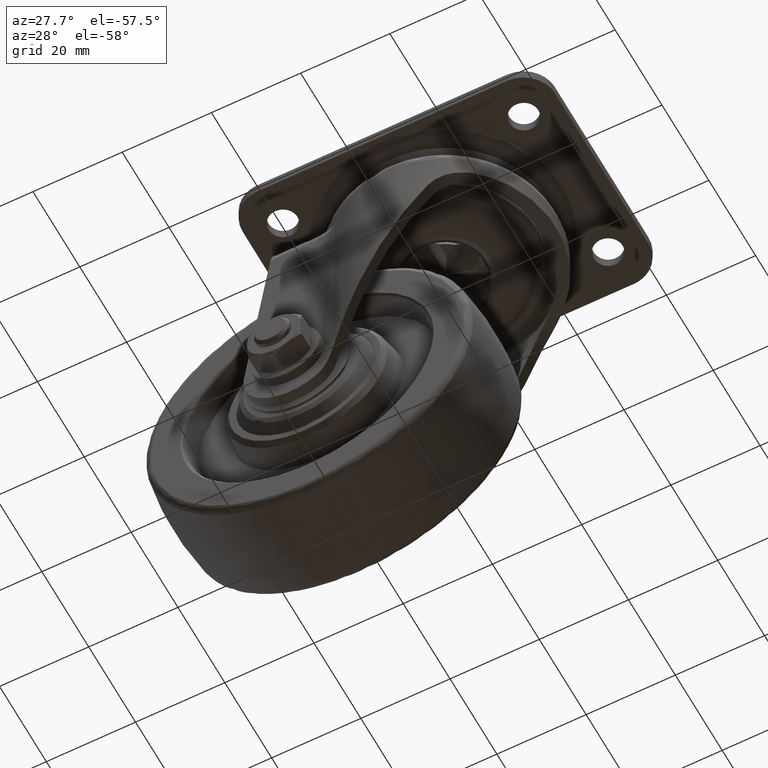
[diagram: clean part render]
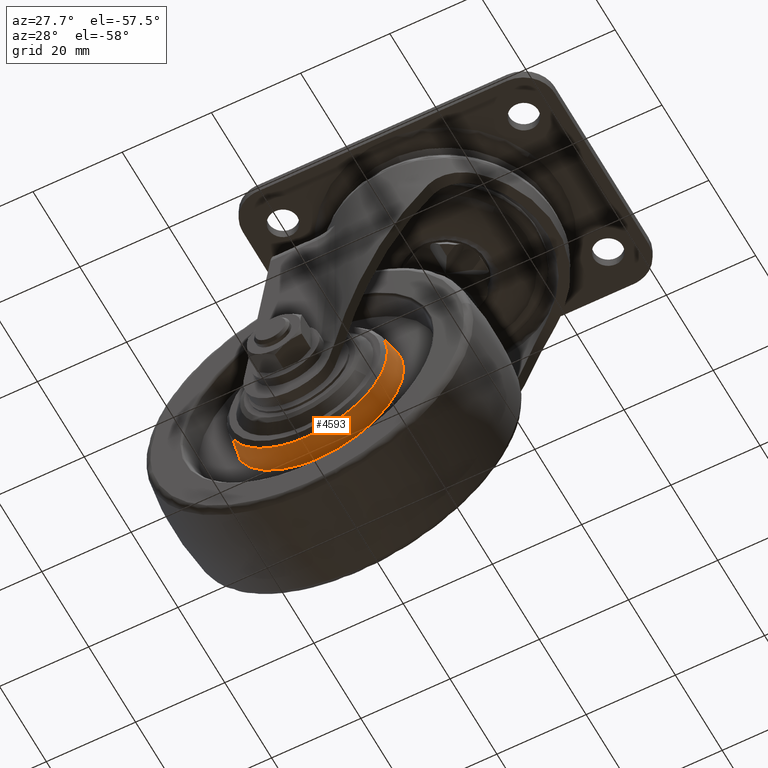
[diagram: same view with one face highlighted and labeled with its STEP entity id]
A machine part, auxiliary view. The second image highlights one B-rep face of the part: STEP entity #4593.
In plain terms, the highlighted face is a freeform B-spline surface patch.
Its self-contained STEP definition (entity closure, byte-faithful):
#4253=CARTESIAN_POINT('',(-25.0,-6.500000000000000,-74.499954999999318));
#4254=VERTEX_POINT('',#4253);
#4255=CARTESIAN_POINT('',(-7.446288882292429,-6.499999999996124,-48.228969785044022));
#4256=VERTEX_POINT('',#4255);
#4257=CARTESIAN_POINT('',(-25.0,-6.500000000000000,-74.499954999999318));
#4258=CARTESIAN_POINT('',(-5.999999999999766,-6.499999999998706,-74.499954999999218));
#4259=CARTESIAN_POINT('',(-5.999999999999414,-6.499999999996768,-55.499954999999069));
#4260=CARTESIAN_POINT('',(-5.999999999999343,-6.499999999996384,-51.720620019775232));
#4261=CARTESIAN_POINT('',(-7.446288882292429,-6.499999999996124,-48.228969785044008));
#4269=(BOUNDED_CURVE()B_SPLINE_CURVE(2,(#4257,#4258,#4259,#4260,#4261),.UNSPECIFIED.,.F.,.U.)B_SPLINE_CURVE_WITH_KNOTS((3,2,3),(0.0,0.250000000000000,0.314972883118700),.UNSPECIFIED.)CURVE()GEOMETRIC_REPRESENTATION_ITEM()RATIONAL_B_SPLINE_CURVE((1.0,0.707106781186548,1.0,0.923879532511095,0.887325194918970))REPRESENTATION_ITEM(''));
#4270=EDGE_CURVE('',#4254,#4256,#4269,.T.);
#4272=CARTESIAN_POINT('',(-42.553711117707572,-6.499999999996124,-62.770940214954621));
#4273=VERTEX_POINT('',#4272);
#4274=CARTESIAN_POINT('',(-42.553711117707572,-6.499999999996124,-62.770940214954635));
#4275=CARTESIAN_POINT('',(-37.695394120452711,-6.499999999998063,-74.499954999999474));
#4276=CARTESIAN_POINT('',(-25.0,-6.500000000000000,-74.499954999999318));
#4284=(BOUNDED_CURVE()B_SPLINE_CURVE(2,(#4274,#4275,#4276),.UNSPECIFIED.,.F.,.U.)B_SPLINE_CURVE_WITH_KNOTS((3,3),(0.814972883118700,1.0),.UNSPECIFIED.)CURVE()GEOMETRIC_REPRESENTATION_ITEM()RATIONAL_B_SPLINE_CURVE((0.887325194918970,0.783227248675452,1.0))REPRESENTATION_ITEM(''));
#4285=EDGE_CURVE('',#4273,#4254,#4284,.T.);
#4462=CARTESIAN_POINT('',(-41.635317825492081,-11.470311920985420,-62.390527564680092));
#4463=VERTEX_POINT('',#4462);
#4494=CARTESIAN_POINT('',(-8.364682174507927,-11.470311920985420,-48.609382435318537));
#4495=VERTEX_POINT('',#4494);
#4509=CARTESIAN_POINT('',(-8.364682174507927,-11.470311920985420,-48.609382435318537));
#4510=CARTESIAN_POINT('',(-7.446288882292429,-6.499999999996124,-48.228969785044022));
#4511=QUASI_UNIFORM_CURVE('',1,(#4509,#4510),.UNSPECIFIED.,.F.,.U.);
#4512=EDGE_CURVE('',#4495,#4256,#4511,.T.);
#4516=CARTESIAN_POINT('',(-41.635317825492081,-11.470311920985420,-62.390527564680092));
#4517=CARTESIAN_POINT('',(-42.553711117707572,-6.499999999996124,-62.770940214954621));
#4518=QUASI_UNIFORM_CURVE('',1,(#4516,#4517),.UNSPECIFIED.,.F.,.U.);
#4519=EDGE_CURVE('',#4463,#4273,#4518,.T.);
#4524=CARTESIAN_POINT('',(-8.387642333452234,-11.594568166305191,-48.618891151522568));
#4525=CARTESIAN_POINT('',(-1.506578484975488,-11.594568166305189,-65.231248818070327));
#4526=CARTESIAN_POINT('',(-18.118936151523251,-11.594568166305191,-72.112312666547083));
#4527=CARTESIAN_POINT('',(-34.731293818071023,-11.594568166305189,-78.993376515023840));
#4528=CARTESIAN_POINT('',(-41.612357666547773,-11.594568166305191,-62.381018848476067));
#4529=CARTESIAN_POINT('',(-7.422755046006405,-6.372635795842369,-48.219221750901120));
#4530=CARTESIAN_POINT('',(-0.142021796908210,-6.372635795842369,-65.796466704894712));
#4531=CARTESIAN_POINT('',(-17.719266750901799,-6.372635795842369,-73.077199953992917));
#4532=CARTESIAN_POINT('',(-35.296511704895401,-6.372635795842369,-80.357933203091108));
#4533=CARTESIAN_POINT('',(-42.577244953993599,-6.372635795842369,-62.780688249097523));
#4541=(BOUNDED_SURFACE()B_SPLINE_SURFACE(2,1,((#4524,#4529),(#4525,#4530),(#4526,#4531),(#4527,#4532),(#4528,#4533)),.UNSPECIFIED.,.F.,.F.,.U.)B_SPLINE_SURFACE_WITH_KNOTS((3,2,3),(2,2),(0.0,31.522435524933559,63.044871049867119),(0.0,5.325347011130369),.UNSPECIFIED.)GEOMETRIC_REPRESENTATION_ITEM()RATIONAL_B_SPLINE_SURFACE(((1.0,1.0),(0.707106781186548,0.707106781186548),(1.0,1.0),(0.707106781186548,0.707106781186548),(1.0,1.0)))REPRESENTATION_ITEM('')SURFACE());
#4542=CARTESIAN_POINT('',(-25.0,-11.470310406056999,-73.505892918787808));
#4543=VERTEX_POINT('',#4542);
#4544=CARTESIAN_POINT('',(-41.635317825492095,-11.470311920985422,-62.390527564680092));
#4545=CARTESIAN_POINT('',(-37.031184064324840,-11.470311163511758,-73.505892860817426));
#4546=CARTESIAN_POINT('',(-25.0,-11.470310406056999,-73.505892918787808));
#4554=(BOUNDED_CURVE()B_SPLINE_CURVE(2,(#4544,#4545,#4546),.UNSPECIFIED.,.F.,.U.)B_SPLINE_CURVE_WITH_KNOTS((3,3),(0.814972869492385,1.0),.UNSPECIFIED.)CURVE()GEOMETRIC_REPRESENTATION_ITEM()RATIONAL_B_SPLINE_CURVE((0.887325210251550,0.783227232711231,1.0))REPRESENTATION_ITEM(''));
#4555=EDGE_CURVE('',#4463,#4543,#4554,.T.);
#4556=ORIENTED_EDGE('',*,*,#4555,.F.);
#4557=ORIENTED_EDGE('',*,*,#4519,.T.);
#4558=ORIENTED_EDGE('',*,*,#4285,.T.);
#4559=ORIENTED_EDGE('',*,*,#4270,.T.);
#4560=ORIENTED_EDGE('',*,*,#4512,.F.);
#4561=CARTESIAN_POINT('',(-10.171523173019750,-11.470310406151400,-65.714164481221786));
#4562=VERTEX_POINT('',#4561);
#4563=CARTESIAN_POINT('',(-10.171523173019748,-11.470310406151402,-65.714164481221800));
#4564=CARTESIAN_POINT('',(-6.994062161313352,-11.470310839570958,-61.101285930409858));
#4565=CARTESIAN_POINT('',(-6.994062251963580,-11.470311330160911,-55.499955070714037));
#4566=CARTESIAN_POINT('',(-6.994062309927152,-11.470311643853929,-51.918352169431451));
#4567=CARTESIAN_POINT('',(-8.364682174507927,-11.470311920985424,-48.609382435318537));
#4575=(BOUNDED_CURVE()B_SPLINE_CURVE(2,(#4563,#4564,#4565,#4566,#4567),.UNSPECIFIED.,.F.,.U.)B_SPLINE_CURVE_WITH_KNOTS((3,2,3),(0.152570046492019,0.250000000000000,0.314972869492385),.UNSPECIFIED.)CURVE()GEOMETRIC_REPRESENTATION_ITEM()RATIONAL_B_SPLINE_CURVE((0.860677560886066,0.885853709232809,1.0,0.923879548475316,0.887325210251550))REPRESENTATION_ITEM(''));
#4576=EDGE_CURVE('',#4562,#4495,#4575,.T.);
#4577=ORIENTED_EDGE('',*,*,#4576,.F.);
#4578=CARTESIAN_POINT('',(-25.0,-11.470310406056999,-73.505892918787808));
#4579=CARTESIAN_POINT('',(-15.538652070376649,-11.470310406104199,-73.505892918782450));
#4580=CARTESIAN_POINT('',(-10.171523173019748,-11.470310406151402,-65.714164481221800));
#4588=(BOUNDED_CURVE()B_SPLINE_CURVE(2,(#4578,#4579,#4580),.UNSPECIFIED.,.F.,.U.)B_SPLINE_CURVE_WITH_KNOTS((3,3),(0.0,0.152570046492019),.UNSPECIFIED.)CURVE()GEOMETRIC_REPRESENTATION_ITEM()RATIONAL_B_SPLINE_CURVE((1.0,0.821253071953738,0.860677560886066))REPRESENTATION_ITEM(''));
#4589=EDGE_CURVE('',#4543,#4562,#4588,.T.);
#4590=ORIENTED_EDGE('',*,*,#4589,.F.);
#4591=EDGE_LOOP('',(#4556,#4557,#4558,#4559,#4560,#4577,#4590));
#4592=FACE_OUTER_BOUND('',#4591,.T.);
#4593=ADVANCED_FACE('',(#4592),#4541,.T.);